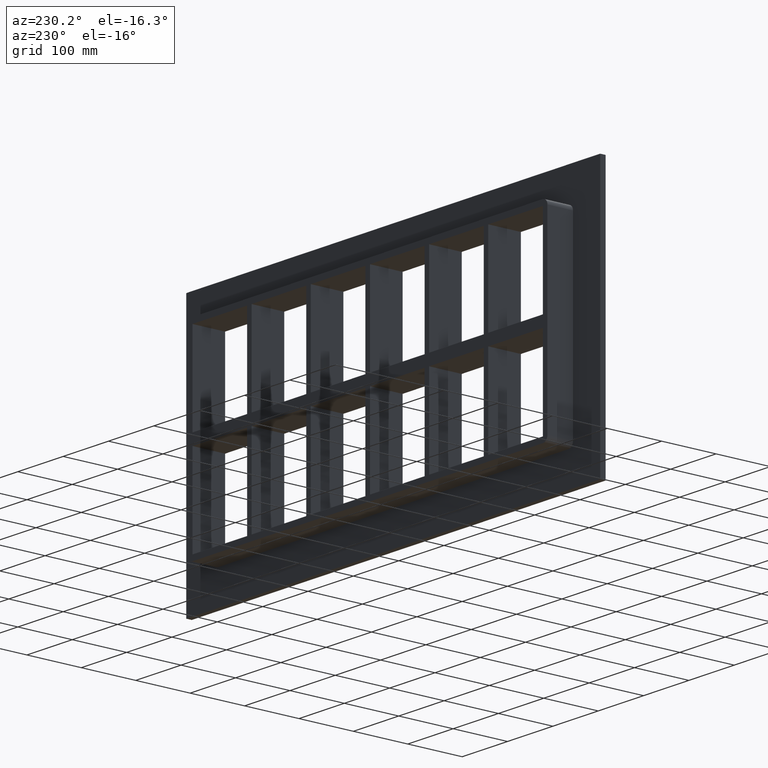
[diagram: clean part render]
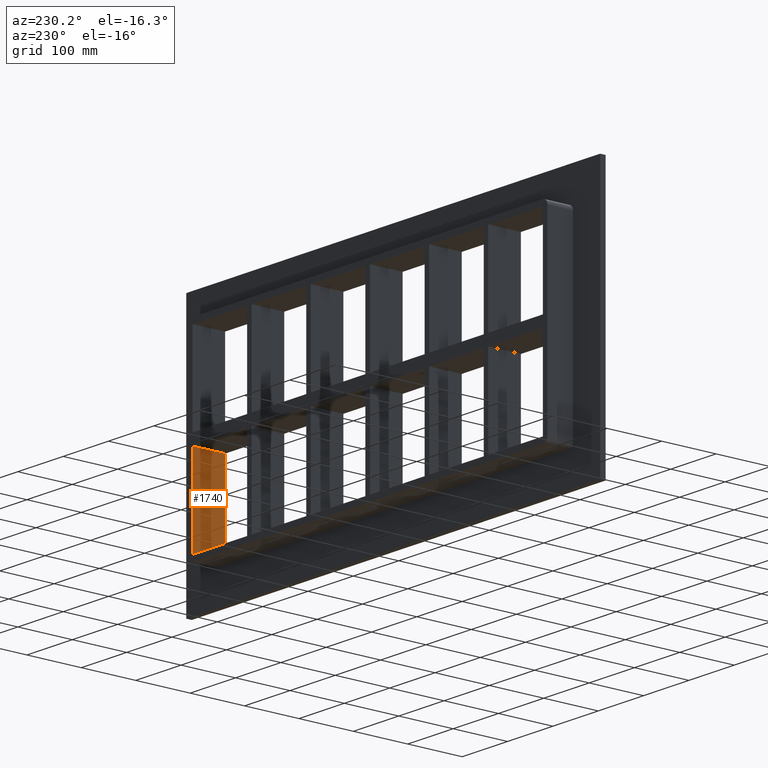
[diagram: same view with one face highlighted and labeled with its STEP entity id]
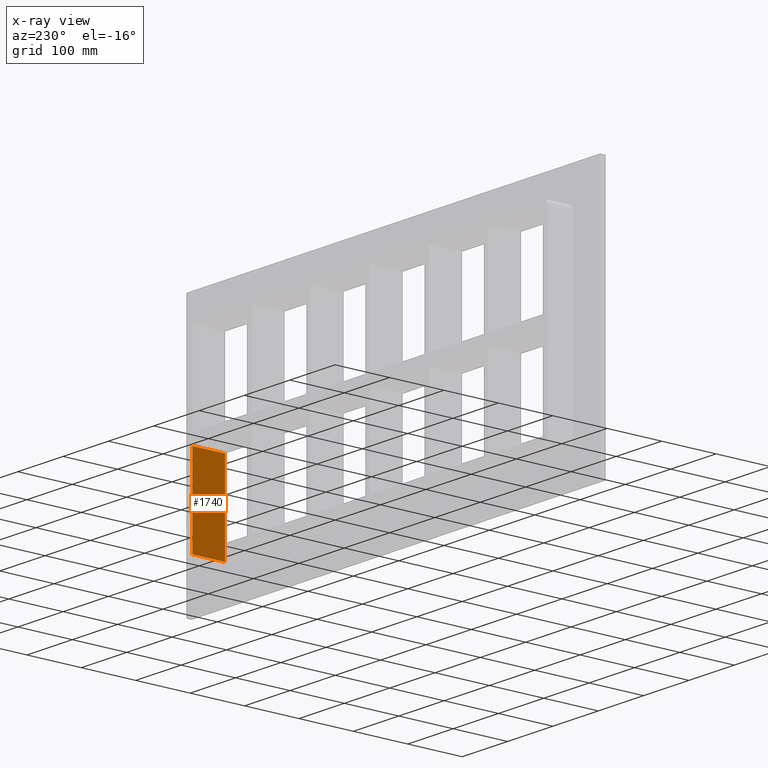
[diagram: x-ray of the same camera — body ghosted, the highlighted face saturated]
A machine part, auxiliary view. The second image highlights one B-rep face of the part: STEP entity #1740.
The next image is the same camera in x-ray: the body ghosted, the highlighted face saturated — about 0% of this face is hidden behind the body in this view.
In plain terms, the highlighted planar face has unit normal (1, 0, 0).
Its self-contained STEP definition (entity closure, byte-faithful):
#811=CARTESIAN_POINT('',(386.50000000000006,-3.0,-169.50000000000003));
#812=VERTEX_POINT('',#811);
#819=CARTESIAN_POINT('',(386.50000000000006,57.0,-169.50000000000003));
#820=VERTEX_POINT('',#819);
#821=CARTESIAN_POINT('',(386.50000000000006,57.0,-169.50000000000003));
#822=DIRECTION('',(0.0,-1.0,0.0));
#823=VECTOR('',#822,60.0);
#824=LINE('',#821,#823);
#825=EDGE_CURVE('',#820,#812,#824,.T.);
#1061=CARTESIAN_POINT('',(386.49999999999636,-3.0,-10.000000000009379));
#1062=VERTEX_POINT('',#1061);
#1069=CARTESIAN_POINT('',(386.50000000000006,-3.0,-10.000000000009379));
#1070=DIRECTION('',(0.0,0.0,-1.0));
#1071=VECTOR('',#1070,159.49999999999068);
#1072=LINE('',#1069,#1071);
#1073=EDGE_CURVE('',#1062,#812,#1072,.T.);
#1153=CARTESIAN_POINT('',(386.49999999999636,57.0,-10.000000000009379));
#1154=VERTEX_POINT('',#1153);
#1161=CARTESIAN_POINT('',(386.50000000000006,-3.0,-10.000000000009379));
#1162=DIRECTION('',(0.0,1.0,0.0));
#1163=VECTOR('',#1162,60.000000000000007);
#1164=LINE('',#1161,#1163);
#1165=EDGE_CURVE('',#1062,#1154,#1164,.T.);
#1305=CARTESIAN_POINT('',(386.50000000000006,57.0,-169.50000000000006));
#1306=DIRECTION('',(0.0,0.0,1.0));
#1307=VECTOR('',#1306,159.49999999999068);
#1308=LINE('',#1305,#1307);
#1309=EDGE_CURVE('',#820,#1154,#1308,.T.);
#1729=CARTESIAN_POINT('',(386.50000000000006,0.0,169.50000000000003));
#1730=DIRECTION('',(1.0,0.0,0.0));
#1731=DIRECTION('',(0.0,0.0,-1.0));
#1732=AXIS2_PLACEMENT_3D('',#1729,#1730,#1731);
#1733=PLANE('',#1732);
#1734=ORIENTED_EDGE('',*,*,#1165,.T.);
#1735=ORIENTED_EDGE('',*,*,#1309,.F.);
#1736=ORIENTED_EDGE('',*,*,#825,.T.);
#1737=ORIENTED_EDGE('',*,*,#1073,.F.);
#1738=EDGE_LOOP('',(#1734,#1735,#1736,#1737));
#1739=FACE_OUTER_BOUND('',#1738,.T.);
#1740=ADVANCED_FACE('',(#1739),#1733,.F.);